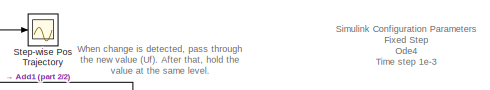
[diagram: root canvas - part 1/2, top center region]
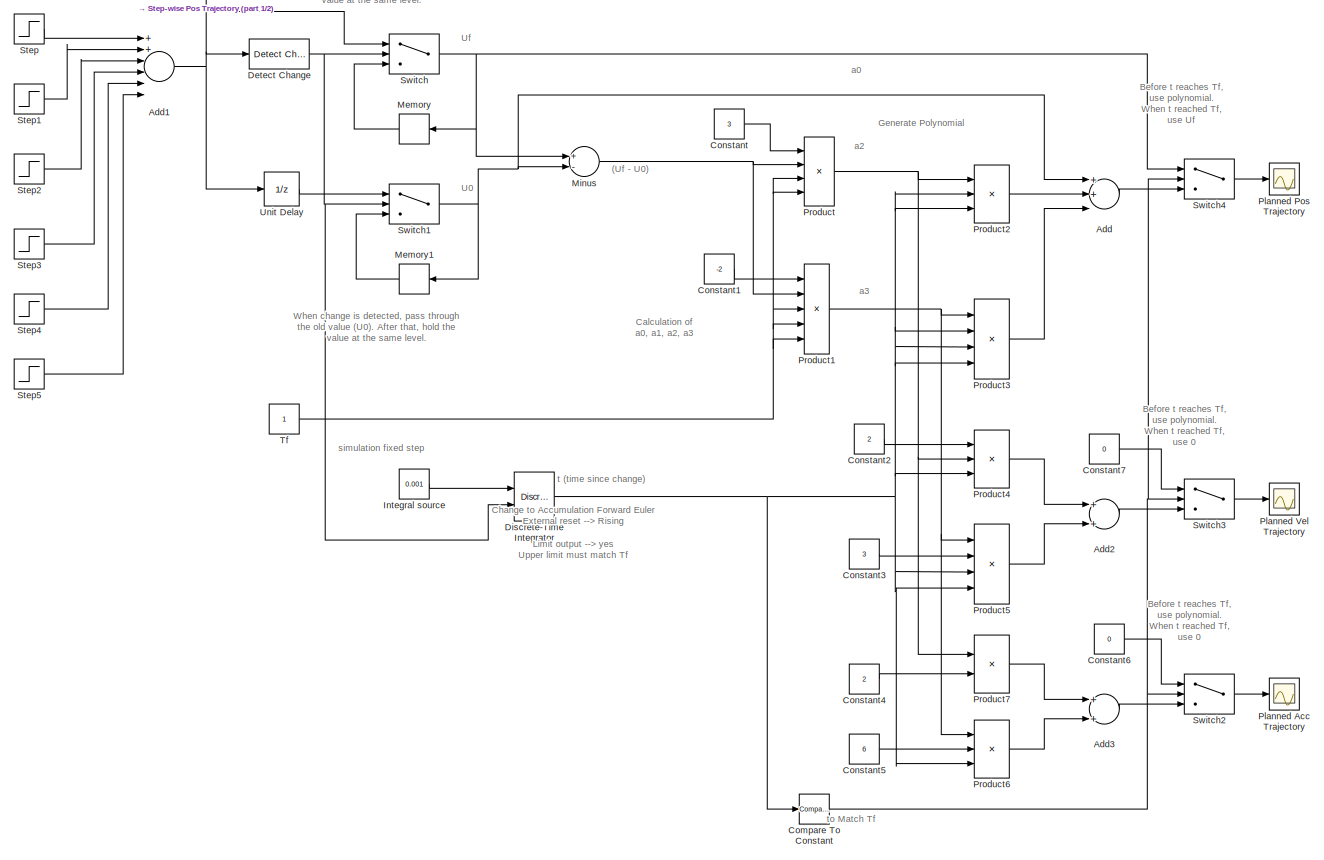
[diagram: root canvas - part 2/2, most of the canvas]
MODEL slx_b8015068b1c0
KIND model
CONFIG AbsTol = auto
CONFIG EnableMultiTasking = on
CONFIG FixedStep = 1e-3
CONFIG MaxStep = auto
CONFIG MinStep = auto
CONFIG RelTol = 1e-3
CONFIG SampleTimeConstraint = Unconstrained
CONFIG Solver = ode4
CONFIG SolverName = ode4
CONFIG StartTime = 0.0
CONFIG StopTime = 20
BLOCK [Sum] Add
  InputSameDT = off
  Inputs = 3
  OutDataTypeStr = Inherit: Inherit via internal rule
  Ports = [3, 1]
  SaturateOnIntegerOverflow = off
BLOCK [Sum] Add1
  InputSameDT = off
  Inputs = 6
  OutDataTypeStr = Inherit: Inherit via internal rule
  Ports = [6, 1]
  SaturateOnIntegerOverflow = off
BLOCK [Sum] Add2
  InputSameDT = off
  Inputs = 2
  OutDataTypeStr = Inherit: Inherit via internal rule
  Ports = [2, 1]
  SaturateOnIntegerOverflow = off
BLOCK [Sum] Add3
  InputSameDT = off
  Inputs = 2
  OutDataTypeStr = Inherit: Inherit via internal rule
  Ports = [2, 1]
  SaturateOnIntegerOverflow = off
BLOCK [Reference] Compare To Constant  REF=simulink/Logic and Bit
Operations/Compare
To Constant
  Ports = [1, 1]
  SourceBlock = simulink/Logic and Bit\nOperations/Compare\nTo Constant
  SourceProductBaseCode = SL
  SourceProductName = Simulink
  SourceType = Compare To Constant
BLOCK [Constant] Constant
  Value = 3
BLOCK [Constant] Constant1
  Value = -2
BLOCK [Constant] Constant2
  Value = 2
BLOCK [Constant] Constant3
  Value = 3
BLOCK [Constant] Constant4
  Value = 2
BLOCK [Constant] Constant5
  Value = 6
BLOCK [Constant] Constant6
  Value = 0
BLOCK [Constant] Constant7
  Value = 0
BLOCK [Reference] Detect Change  REF=simulink/Logic and Bit
Operations/Detect
Change
  Ports = [1, 1]
  SourceBlock = simulink/Logic and Bit\nOperations/Detect\nChange
  SourceProductBaseCode = SL
  SourceProductName = Simulink
  SourceType = Detect Change
BLOCK [DiscreteIntegrator] Discrete-Time Integrator
  ExternalReset = rising
  ICPrevOutput = DiscIntNeverNeededParam
  ICPrevScaledInput = DiscIntNeverNeededParam
  InitialConditionSetting = State (most efficient)
  IntegratorMethod = Accumulation: Forward Euler
  LimitOutput = on
  Ports = [2, 1]
  SampleTime = -1
  UpperSaturationLimit = 1
  gainval = 1
BLOCK [Constant] Integral source
  Value = 0.001
BLOCK [Memory] Memory
  InheritSampleTime = on
BLOCK [Memory] Memory1
  InheritSampleTime = on
BLOCK [Sum] Minus
  InputSameDT = off
  Inputs = +-
  OutDataTypeStr = Inherit: Inherit via internal rule
  Ports = [2, 1]
  SaturateOnIntegerOverflow = off
BLOCK [Scope] Planned Acc Trajectory
  NumInputPorts = 1
  Ports = [1]
  ScopeSpecificationString = Simulink.scopes.TimeScopeBlockCfg('CurrentConfiguration', extmgr.ConfigurationSet(extmgr.Configuration('Core','General UI',true),extmgr.Configuration('Core','Source UI',true),extmgr.Configuration('Sources','WiredSimulink',true,'DataLoggingVariableName','ScopeData1'),extmgr.Configuration('Visuals','Time Domain',true,'SerializedDisplays',{struct('MinYLimReal','-15.00000','MaxYLimReal','15.00000','YL...<+1372ch>
BLOCK [Scope] Planned Pos Trajectory
  NumInputPorts = 1
  Ports = [1]
  ScopeSpecificationString = Simulink.scopes.TimeScopeBlockCfg('CurrentConfiguration', extmgr.ConfigurationSet(extmgr.Configuration('Core','General UI',true),extmgr.Configuration('Core','Source UI',true),extmgr.Configuration('Sources','WiredSimulink',true,'DataLoggingSaveFormat','Array','DataLoggingDecimation','1','DataLoggingDecimateData',true),extmgr.Configuration('Visuals','Time Domain',true,'SerializedDisplays',{struct('M...<+1456ch>
BLOCK [Scope] Planned Vel Trajectory
  NumInputPorts = 1
  Ports = [1]
  ScopeSpecificationString = Simulink.scopes.TimeScopeBlockCfg('CurrentConfiguration', extmgr.ConfigurationSet(extmgr.Configuration('Core','General UI',true),extmgr.Configuration('Core','Source UI',true),extmgr.Configuration('Sources','WiredSimulink',true,'DataLoggingSaveFormat','Array','DataLoggingDecimation','1','DataLoggingDecimateData',true,'DataLoggingVariableName','ScopeData1'),extmgr.Configuration('Visuals','Time Domai...<+1483ch>
BLOCK [Product] Product
  InputSameDT = off
  Inputs = **//
  OutDataTypeStr = Inherit: Inherit via internal rule
  Ports = [4, 1]
  RndMeth = Floor
  SaturateOnIntegerOverflow = off
BLOCK [Product] Product1
  InputSameDT = off
  Inputs = **///
  OutDataTypeStr = Inherit: Inherit via internal rule
  Ports = [5, 1]
  RndMeth = Floor
  SaturateOnIntegerOverflow = off
BLOCK [Product] Product2
  InputSameDT = off
  Inputs = 3
  OutDataTypeStr = Inherit: Inherit via internal rule
  Ports = [3, 1]
  RndMeth = Floor
  SaturateOnIntegerOverflow = off
BLOCK [Product] Product3
  InputSameDT = off
  Inputs = 4
  OutDataTypeStr = Inherit: Inherit via internal rule
  Ports = [4, 1]
  RndMeth = Floor
  SaturateOnIntegerOverflow = off
BLOCK [Product] Product4
  InputSameDT = off
  Inputs = 3
  OutDataTypeStr = Inherit: Inherit via internal rule
  Ports = [3, 1]
  RndMeth = Floor
  SaturateOnIntegerOverflow = off
BLOCK [Product] Product5
  InputSameDT = off
  Inputs = 4
  OutDataTypeStr = Inherit: Inherit via internal rule
  Ports = [4, 1]
  RndMeth = Floor
  SaturateOnIntegerOverflow = off
BLOCK [Product] Product6
  InputSameDT = off
  Inputs = 3
  OutDataTypeStr = Inherit: Inherit via internal rule
  Ports = [3, 1]
  RndMeth = Floor
  SaturateOnIntegerOverflow = off
BLOCK [Product] Product7
  InputSameDT = off
  OutDataTypeStr = Inherit: Inherit via internal rule
  Ports = [2, 1]
  RndMeth = Floor
  SaturateOnIntegerOverflow = off
BLOCK [Step] Step
  SampleTime = 0
BLOCK [Scope] Step-wise Pos Trajectory
  NumInputPorts = 1
  Ports = [1]
  ScopeSpecificationString = Simulink.scopes.TimeScopeBlockCfg('CurrentConfiguration', extmgr.ConfigurationSet(extmgr.Configuration('Core','General UI',true),extmgr.Configuration('Core','Source UI',true),extmgr.Configuration('Sources','WiredSimulink',true,'DataLoggingSaveFormat','Array','DataLoggingDecimation','1','DataLoggingDecimateData',true,'DataLoggingVariableName','ScopeData1'),extmgr.Configuration('Visuals','Time Domai...<+1492ch>
BLOCK [Step] Step1
  After = 2
  SampleTime = 0
  Time = 4
BLOCK [Step] Step2
  After = -1
  SampleTime = 0
  Time = 8
BLOCK [Step] Step3
  After = 1.5
  SampleTime = 0
  Time = 11
BLOCK [Step] Step4
  After = -1
  SampleTime = 0
  Time = 14
BLOCK [Step] Step5
  After = -2
  SampleTime = 0
  Time = 17
BLOCK [Switch] Switch
  Criteria = u2 > Threshold
  InputSameDT = off
  SaturateOnIntegerOverflow = off
BLOCK [Switch] Switch1
  Criteria = u2 > Threshold
  InputSameDT = off
  SaturateOnIntegerOverflow = off
BLOCK [Switch] Switch2
  Criteria = u2 > Threshold
  InputSameDT = off
  SaturateOnIntegerOverflow = off
BLOCK [Switch] Switch3
  Criteria = u2 > Threshold
  InputSameDT = off
  SaturateOnIntegerOverflow = off
BLOCK [Switch] Switch4
  Criteria = u2 > Threshold
  InputSameDT = off
  SaturateOnIntegerOverflow = off
BLOCK [Constant] Tf
BLOCK [UnitDelay] Unit Delay
  InputProcessing = Elements as channels (sample based)
  SampleTime = -1
ANNOTATION (root): (Uf - U0)
ANNOTATION (root): simulation fixed step
ANNOTATION (root): Before t reaches Tf, use polynomial. When t reached Tf, use 0
ANNOTATION (root): Before t reaches Tf, use polynomial. When t reached Tf, use Uf
ANNOTATION (root): Calculation of a0, a1, a2, a3
ANNOTATION (root): Change to Accumulation Forward Euler External reset --> Rising Limit output --> yes Upper limit must match Tf
ANNOTATION (root): Generate Polynomial
ANNOTATION (root): Simulink Configuration Parameters Fixed Step Ode4 Time step 1e-3
ANNOTATION (root): U0
ANNOTATION (root): Uf
ANNOTATION (root): When change is detected, pass through the new value (Uf). After that, hold the value at the same level.
ANNOTATION (root): When change is detected, pass through the old value (U0). After that, hold the value at the same level.
ANNOTATION (root): a0
ANNOTATION (root): a2
ANNOTATION (root): a3
ANNOTATION (root): t (time since change)
ANNOTATION (root): to Match Tf
NET Add1:1 -> Detect Change:1, Step-wise Pos Trajectory:1, Switch:1, Unit Delay:1
LINE Add2:1 -> Switch3:3
LINE Add3:1 -> Switch2:3
LINE Add:1 -> Switch4:3
NET Compare To Constant:1 -> Switch2:2, Switch3:2, Switch4:2
LINE Constant1:1 -> Product1:1
LINE Constant2:1 -> Product4:1
LINE Constant3:1 -> Product5:2
LINE Constant4:1 -> Product7:2
LINE Constant5:1 -> Product6:2
LINE Constant6:1 -> Switch2:1
LINE Constant7:1 -> Switch3:1
LINE Constant:1 -> Product:1
NET Detect Change:1 -> Discrete-Time Integrator:2, Switch1:2, Switch:2
NET Discrete-Time Integrator:1 -> Compare To Constant:1, Product2:2, Product2:3, Product3:2, Product3:3, Product3:4, Product4:3, Product5:3, Product5:4, Product6:3
LINE Integral source:1 -> Discrete-Time Integrator:1
LINE Memory1:1 -> Switch1:3
LINE Memory:1 -> Switch:3
NET Minus:1 -> Product1:2, Product:2
NET Product1:1 -> Product3:1, Product5:1, Product6:1
LINE Product2:1 -> Add:2
LINE Product3:1 -> Add:3
LINE Product4:1 -> Add2:1
LINE Product5:1 -> Add2:2
LINE Product6:1 -> Add3:2
LINE Product7:1 -> Add3:1
NET Product:1 -> Product2:1, Product4:2, Product7:1
LINE Step1:1 -> Add1:2
LINE Step2:1 -> Add1:3
LINE Step3:1 -> Add1:4
LINE Step4:1 -> Add1:5
LINE Step5:1 -> Add1:6
LINE Step:1 -> Add1:1
NET Switch1:1 -> Add:1, Memory1:1, Minus:2
LINE Switch2:1 -> Planned Acc Trajectory:1
LINE Switch3:1 -> Planned Vel Trajectory:1
LINE Switch4:1 -> Planned Pos Trajectory:1
NET Switch:1 -> Memory:1, Minus:1, Switch4:1
NET Tf:1 -> Product1:3, Product1:4, Product1:5, Product:3, Product:4
LINE Unit Delay:1 -> Switch1:1
note: NET lines group one-source signal fan-out (src -> all destinations, sorted); 1:1 wires keep LINE
